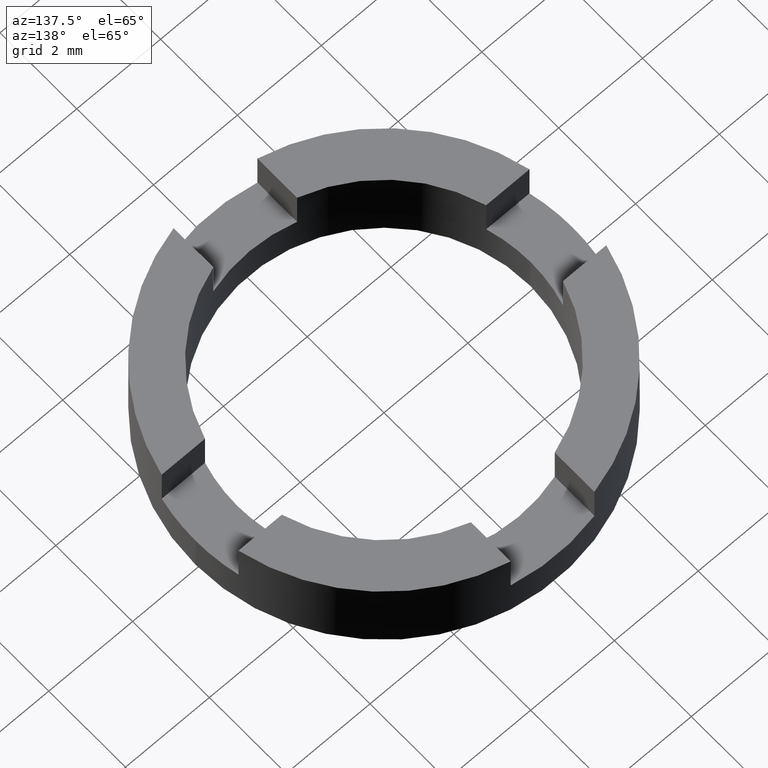
[diagram: clean part render]
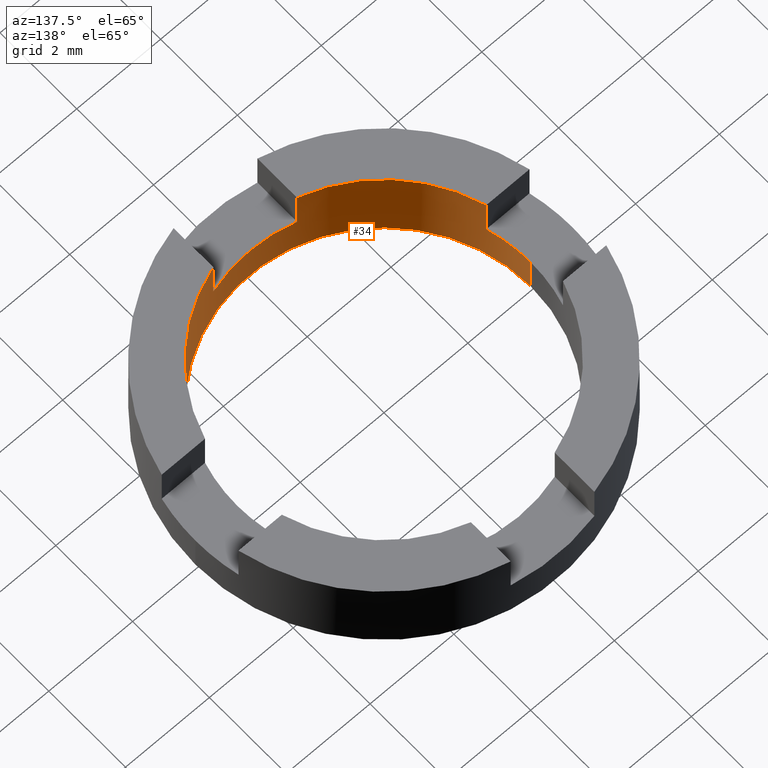
[diagram: same view with one face highlighted and labeled with its STEP entity id]
A machine part, auxiliary view. The second image highlights one B-rep face of the part: STEP entity #34.
In plain terms, the highlighted cylindrical surface (partial cylindrical patch) has radius 3.5 mm, axis along (-0, -0, -1).
Its self-contained STEP definition (entity closure, byte-faithful):
#29 = LINE ( 'NONE', #154, #721 ) ;
#31 = VERTEX_POINT ( 'NONE', #51 ) ;
#34 = ADVANCED_FACE ( 'NONE', ( #725 ), #420, .F. ) ;
#43 = CARTESIAN_POINT ( 'NONE',  ( 0.000000000000000000, 0.000000000000000000, 1.000000000000000000 ) ) ;
#49 = EDGE_CURVE ( 'NONE', #704, #588, #664, .T. ) ;
#51 = CARTESIAN_POINT ( 'NONE',  ( 1.000000000000347278, -3.354101966249581235, 1.000000000000000000 ) ) ;
#56 = CARTESIAN_POINT ( 'NONE',  ( 3.354101966249698030, -0.9999999999999547029, 2.000000000000000000 ) ) ;
#57 = VECTOR ( 'NONE', #423, 1000.000000000000000 ) ;
#63 = CARTESIAN_POINT ( 'NONE',  ( -3.354101966249594557, -1.000000000000302203, 2.000000000000000000 ) ) ;
#65 = EDGE_CURVE ( 'NONE', #363, #228, #233, .T. ) ;
#70 = AXIS2_PLACEMENT_3D ( 'NONE', #305, #431, #503 ) ;
#78 = VERTEX_POINT ( 'NONE', #119 ) ;
#92 = ORIENTED_EDGE ( 'NONE', *, *, #65, .F. ) ;
#95 = ORIENTED_EDGE ( 'NONE', *, *, #739, .F. ) ;
#98 = DIRECTION ( 'NONE',  ( 0.000000000000000000, 0.000000000000000000, 1.000000000000000000 ) ) ;
#99 = VECTOR ( 'NONE', #603, 1000.000000000000000 ) ;
#101 = LINE ( 'NONE', #585, #367 ) ;
#119 = CARTESIAN_POINT ( 'NONE',  ( 3.500000000000000000, 4.286263797015736595E-16, 1.000000000000000000 ) ) ;
#122 = CARTESIAN_POINT ( 'NONE',  ( 3.354101966249698030, -0.9999999999999547029, 1.000000000000000000 ) ) ;
#126 = DIRECTION ( 'NONE',  ( -1.000000000000000000, 0.000000000000000000, 0.000000000000000000 ) ) ;
#129 = CARTESIAN_POINT ( 'NONE',  ( 3.500000000000000000, 4.286263797015736595E-16, 0.000000000000000000 ) ) ;
#135 = AXIS2_PLACEMENT_3D ( 'NONE', #726, #435, #126 ) ;
#136 = CARTESIAN_POINT ( 'NONE',  ( 0.000000000000000000, 0.000000000000000000, 2.000000000000000000 ) ) ;
#154 = CARTESIAN_POINT ( 'NONE',  ( -3.500000000000000000, 0.000000000000000000, 2.000000000000000000 ) ) ;
#159 = EDGE_CURVE ( 'NONE', #221, #525, #246, .T. ) ;
#173 = EDGE_CURVE ( 'NONE', #221, #228, #248, .T. ) ;
#176 = ORIENTED_EDGE ( 'NONE', *, *, #595, .T. ) ;
#182 = VECTOR ( 'NONE', #620, 1000.000000000000000 ) ;
#185 = EDGE_CURVE ( 'NONE', #525, #394, #300, .T. ) ;
#186 = DIRECTION ( 'NONE',  ( 0.000000000000000000, -0.000000000000000000, -1.000000000000000000 ) ) ;
#195 = EDGE_CURVE ( 'NONE', #743, #754, #236, .T. ) ;
#205 = ORIENTED_EDGE ( 'NONE', *, *, #159, .F. ) ;
#221 = VERTEX_POINT ( 'NONE', #258 ) ;
#228 = VERTEX_POINT ( 'NONE', #385 ) ;
#230 = CARTESIAN_POINT ( 'NONE',  ( 0.000000000000000000, 0.000000000000000000, 2.000000000000000000 ) ) ;
#233 = LINE ( 'NONE', #482, #57 ) ;
#236 = CIRCLE ( 'NONE', #70, 3.500000000000000000 ) ;
#238 = DIRECTION ( 'NONE',  ( -0.000000000000000000, -0.000000000000000000, -1.000000000000000000 ) ) ;
#246 = LINE ( 'NONE', #63, #182 ) ;
#247 = ORIENTED_EDGE ( 'NONE', *, *, #390, .F. ) ;
#248 = CIRCLE ( 'NONE', #260, 3.500000000000000000 ) ;
#258 = CARTESIAN_POINT ( 'NONE',  ( -3.354101966249594557, -1.000000000000302203, 2.000000000000000000 ) ) ;
#260 = AXIS2_PLACEMENT_3D ( 'NONE', #136, #627, #321 ) ;
#283 = CARTESIAN_POINT ( 'NONE',  ( -3.354101966249594557, -1.000000000000302203, 1.000000000000000000 ) ) ;
#290 = DIRECTION ( 'NONE',  ( -0.000000000000000000, -0.000000000000000000, -1.000000000000000000 ) ) ;
#293 = DIRECTION ( 'NONE',  ( -1.000000000000000000, 0.000000000000000000, 0.000000000000000000 ) ) ;
#300 = CIRCLE ( 'NONE', #494, 3.500000000000000000 ) ;
#305 = CARTESIAN_POINT ( 'NONE',  ( 0.000000000000000000, 0.000000000000000000, 0.000000000000000000 ) ) ;
#308 = VERTEX_POINT ( 'NONE', #456 ) ;
#311 = AXIS2_PLACEMENT_3D ( 'NONE', #230, #290, #293 ) ;
#314 = EDGE_CURVE ( 'NONE', #308, #588, #712, .T. ) ;
#321 = DIRECTION ( 'NONE',  ( 1.000000000000000000, 0.000000000000000000, 0.000000000000000000 ) ) ;
#344 = DIRECTION ( 'NONE',  ( 1.000000000000000000, 0.000000000000000000, 0.000000000000000000 ) ) ;
#357 = DIRECTION ( 'NONE',  ( 0.000000000000000000, 0.000000000000000000, -1.000000000000000000 ) ) ;
#363 = VERTEX_POINT ( 'NONE', #708 ) ;
#367 = VECTOR ( 'NONE', #782, 1000.000000000000000 ) ;
#385 = CARTESIAN_POINT ( 'NONE',  ( -0.9999999999996528333, -3.354101966249788180, 2.000000000000000000 ) ) ;
#390 = EDGE_CURVE ( 'NONE', #394, #743, #29, .T. ) ;
#394 = VERTEX_POINT ( 'NONE', #649 ) ;
#398 = DIRECTION ( 'NONE',  ( -0.000000000000000000, -0.000000000000000000, -1.000000000000000000 ) ) ;
#399 = ORIENTED_EDGE ( 'NONE', *, *, #195, .F. ) ;
#404 = CARTESIAN_POINT ( 'NONE',  ( 3.354101966249698030, -0.9999999999999547029, 2.000000000000000000 ) ) ;
#410 = EDGE_CURVE ( 'NONE', #31, #363, #483, .T. ) ;
#420 = CYLINDRICAL_SURFACE ( 'NONE', #311, 3.500000000000000000 ) ;
#423 = DIRECTION ( 'NONE',  ( 0.000000000000000000, 0.000000000000000000, 1.000000000000000000 ) ) ;
#426 = AXIS2_PLACEMENT_3D ( 'NONE', #744, #98, #344 ) ;
#431 = DIRECTION ( 'NONE',  ( 0.000000000000000000, 0.000000000000000000, 1.000000000000000000 ) ) ;
#435 = DIRECTION ( 'NONE',  ( 0.000000000000000000, 0.000000000000000000, -1.000000000000000000 ) ) ;
#456 = CARTESIAN_POINT ( 'NONE',  ( 1.000000000000347278, -3.354101966249581235, 2.000000000000000000 ) ) ;
#482 = CARTESIAN_POINT ( 'NONE',  ( -0.9999999999996528333, -3.354101966249788180, 2.000000000000000000 ) ) ;
#483 = CIRCLE ( 'NONE', #667, 3.500000000000000000 ) ;
#492 = CARTESIAN_POINT ( 'NONE',  ( -3.500000000000000000, 0.000000000000000000, 0.000000000000000000 ) ) ;
#494 = AXIS2_PLACEMENT_3D ( 'NONE', #735, #186, #507 ) ;
#503 = DIRECTION ( 'NONE',  ( 1.000000000000000000, 0.000000000000000000, 0.000000000000000000 ) ) ;
#507 = DIRECTION ( 'NONE',  ( -1.000000000000000000, 0.000000000000000000, 0.000000000000000000 ) ) ;
#517 = ORIENTED_EDGE ( 'NONE', *, *, #185, .F. ) ;
#525 = VERTEX_POINT ( 'NONE', #283 ) ;
#539 = VECTOR ( 'NONE', #238, 1000.000000000000000 ) ;
#552 = EDGE_LOOP ( 'NONE', ( #95, #176, #399, #247, #517, #205, #578, #92, #632, #694, #684, #706 ) ) ;
#563 = LINE ( 'NONE', #669, #539 ) ;
#578 = ORIENTED_EDGE ( 'NONE', *, *, #173, .T. ) ;
#585 = CARTESIAN_POINT ( 'NONE',  ( 3.500000000000000000, 4.286263797015736595E-16, 2.000000000000000000 ) ) ;
#588 = VERTEX_POINT ( 'NONE', #404 ) ;
#595 = EDGE_CURVE ( 'NONE', #78, #754, #101, .T. ) ;
#603 = DIRECTION ( 'NONE',  ( 0.000000000000000000, 0.000000000000000000, 1.000000000000000000 ) ) ;
#610 = CIRCLE ( 'NONE', #135, 3.500000000000000000 ) ;
#620 = DIRECTION ( 'NONE',  ( -0.000000000000000000, -0.000000000000000000, -1.000000000000000000 ) ) ;
#627 = DIRECTION ( 'NONE',  ( 0.000000000000000000, 0.000000000000000000, 1.000000000000000000 ) ) ;
#632 = ORIENTED_EDGE ( 'NONE', *, *, #410, .F. ) ;
#649 = CARTESIAN_POINT ( 'NONE',  ( -3.500000000000000000, 0.000000000000000000, 1.000000000000000000 ) ) ;
#664 = LINE ( 'NONE', #56, #99 ) ;
#667 = AXIS2_PLACEMENT_3D ( 'NONE', #43, #357, #772 ) ;
#669 = CARTESIAN_POINT ( 'NONE',  ( 1.000000000000347278, -3.354101966249581235, 2.000000000000000000 ) ) ;
#684 = ORIENTED_EDGE ( 'NONE', *, *, #314, .T. ) ;
#694 = ORIENTED_EDGE ( 'NONE', *, *, #723, .F. ) ;
#704 = VERTEX_POINT ( 'NONE', #122 ) ;
#706 = ORIENTED_EDGE ( 'NONE', *, *, #49, .F. ) ;
#708 = CARTESIAN_POINT ( 'NONE',  ( -0.9999999999996528333, -3.354101966249788180, 1.000000000000000000 ) ) ;
#712 = CIRCLE ( 'NONE', #426, 3.500000000000000000 ) ;
#721 = VECTOR ( 'NONE', #398, 1000.000000000000000 ) ;
#723 = EDGE_CURVE ( 'NONE', #308, #31, #563, .T. ) ;
#725 = FACE_OUTER_BOUND ( 'NONE', #552, .T. ) ;
#726 = CARTESIAN_POINT ( 'NONE',  ( 0.000000000000000000, 0.000000000000000000, 1.000000000000000000 ) ) ;
#735 = CARTESIAN_POINT ( 'NONE',  ( 0.000000000000000000, 0.000000000000000000, 1.000000000000000000 ) ) ;
#739 = EDGE_CURVE ( 'NONE', #78, #704, #610, .T. ) ;
#743 = VERTEX_POINT ( 'NONE', #492 ) ;
#744 = CARTESIAN_POINT ( 'NONE',  ( 0.000000000000000000, 0.000000000000000000, 2.000000000000000000 ) ) ;
#754 = VERTEX_POINT ( 'NONE', #129 ) ;
#772 = DIRECTION ( 'NONE',  ( -1.000000000000000000, 0.000000000000000000, 0.000000000000000000 ) ) ;
#782 = DIRECTION ( 'NONE',  ( -0.000000000000000000, -0.000000000000000000, -1.000000000000000000 ) ) ;